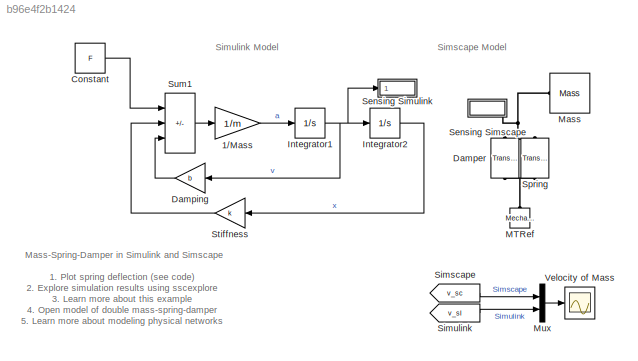
MODEL slx_b96e4f2b1424
KIND model
CONFIG AbsTol = 1e-3
CONFIG EnableMultiTasking = on
CONFIG FixedStep = auto
CONFIG MaxStep = 0.025
CONFIG MinStep = auto
CONFIG PreLoadFcn = m = 3.600;     % kg\nk = 400;    % N/m\nb = 10;      % Ns/m\nx0=1; %m
CONFIG RelTol = 1e-3
CONFIG SampleTimeConstraint = Unconstrained
CONFIG SolverName = VariableStepAuto
CONFIG StartTime = 0.0
CONFIG StopTime = 5
BLOCK [Gain] 1//Mass 
  Gain = 1/m
  OutDataTypeStr = Inherit: Same as input
  ParamDataTypeStr = Inherit: Same as input
  SaturateOnIntegerOverflow = on
BLOCK [Constant] Constant
  Value = F
BLOCK [Reference] Damper  REF=fl_lib/Mechanical/Translational
Elements/Translational Damper
  Commented = on
  NameLocation = left
  Ports = [0, 0, 0, 0, 0, 1, 1]
  SourceBlock = fl_lib/Mechanical/Translational\nElements/Translational Damper
  SourceProductBaseCode = SS
  SourceType = Translational Damper
BLOCK [Gain] Damping
  Gain = b
  OutDataTypeStr = Inherit: Same as input
  ParamDataTypeStr = Inherit: Same as input
  SaturateOnIntegerOverflow = on
BLOCK [Integrator] Integrator1
  Ports = [1, 1]
BLOCK [Integrator] Integrator2
  AttributesFormatString = x0 = %<InitialCondition> m
  InitialCondition = 1
  Ports = [1, 1]
BLOCK [Reference] MTRef  REF=fl_lib/Mechanical/Translational
Elements/Mechanical
Translational
Reference
  Commented = on
  NameLocation = right
  Ports = [0, 0, 0, 0, 0, 1]
  SourceBlock = fl_lib/Mechanical/Translational\nElements/Mechanical\nTranslational\nReference
  SourceProductBaseCode = SS
  SourceType = Mechanical\nTranslational\nReference
BLOCK [Reference] Mass  REF=fl_lib/Mechanical/Translational
Elements/Mass
  Commented = on
  Ports = [0, 0, 0, 0, 0, 1]
  SourceBlock = fl_lib/Mechanical/Translational\nElements/Mass
  SourceProductBaseCode = SS
  SourceType = Mass
BLOCK [Mux] Mux
  DisplayOption = bar
  Inputs = 2
  Ports = [2, 1]
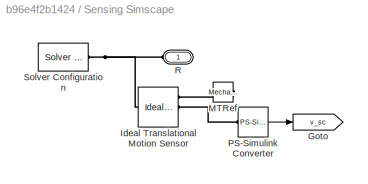
BLOCK [SubSystem] Sensing Simscape
  Commented = on
  Ports = [0, 0, 0, 0, 0, 1]
  RequestExecContextInheritance = off
BLOCK [Goto] Sensing Simscape/Goto
  GotoTag = v_sc
  TagVisibility = global
BLOCK [Reference] Sensing Simscape/Ideal Translational Motion Sensor  REF=fl_lib/Mechanical/Mechanical Sensors/Ideal Translational
Motion Sensor
  Ports = [0, 0, 0, 0, 0, 1, 3]
  SourceBlock = fl_lib/Mechanical/Mechanical Sensors/Ideal Translational\nMotion Sensor
  SourceProductBaseCode = SS
  SourceType = Ideal Translational\nMotion Sensor
BLOCK [Reference] Sensing Simscape/MTRef  REF=fl_lib/Mechanical/Translational
Elements/Mechanical
Translational
Reference
  NameLocation = top
  Ports = [0, 0, 0, 0, 0, 1]
  SourceBlock = fl_lib/Mechanical/Translational\nElements/Mechanical\nTranslational\nReference
  SourceProductBaseCode = SS
  SourceType = Mechanical\nTranslational\nReference
BLOCK [Reference] Sensing Simscape/PS-Simulink Converter  REF=nesl_utility/PS-Simulink
Converter
  Ports = [0, 1, 0, 0, 0, 1]
  SourceBlock = nesl_utility/PS-Simulink\nConverter
  SourceProductBaseCode = PW,SS
  SourceType = PS-Simulink\nConverter
BLOCK [PMIOPort] Sensing Simscape/R
  Side = Left
BLOCK [Reference] Sensing Simscape/Solver Configuration  REF=nesl_utility/Solver
Configuration
  Ports = [0, 0, 0, 0, 0, 0, 1]
  SourceBlock = nesl_utility/Solver\nConfiguration
  SourceProductBaseCode = PW,SS
  SourceType = Solver\nConfiguration
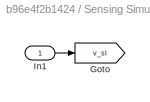
BLOCK [SubSystem] Sensing Simulink
  NameLocation = top
  Ports = [1]
  RequestExecContextInheritance = off
BLOCK [Goto] Sensing Simulink/Goto
  GotoTag = v_sl
  TagVisibility = global
BLOCK [Inport] Sensing Simulink/In1
BLOCK [From] Simscape
  GotoTag = v_sc
  TagVisibility = global
BLOCK [From] Simulink
  GotoTag = v_sl
  NameLocation = top
  TagVisibility = global
BLOCK [Reference] Spring  REF=fl_lib/Mechanical/Translational
Elements/Translational Spring
  AttributesFormatString = x0 = %<x> %<x_unit>
  Commented = on
  NameLocation = right
  Ports = [0, 0, 0, 0, 0, 1, 1]
  SourceBlock = fl_lib/Mechanical/Translational\nElements/Translational Spring
  SourceProductBaseCode = SS
  SourceType = Translational Spring
BLOCK [Gain] Stiffness
  Gain = k
  OutDataTypeStr = Inherit: Same as input
  ParamDataTypeStr = Inherit: Same as input
  SaturateOnIntegerOverflow = on
BLOCK [Sum] Sum1
  IconShape = rectangular
  InputSameDT = on
  Inputs = +--
  OutDataTypeStr = Inherit: Same as first input
  Ports = [3, 1]
  SaturateOnIntegerOverflow = on
BLOCK [Scope] Velocity of Mass
  Floating = off
  NumInputPorts = 1
  Ports = [1]
  ScopeSpecificationString = Simulink.scopes.TimeScopeBlockCfg('CurrentConfiguration', extmgr.ConfigurationSet(extmgr.Configuration('Core','General UI',true,'FigureColor',[0.501960784313725 0.501960784313725 0.501960784313725]),extmgr.Configuration('Core','Source UI',true),extmgr.Configuration('Sources','WiredSimulink',true,'DataLoggingSaveFormat','Array','DataLoggingLimitDataPoints',true,'DataLoggingDecimation','1'),extmgr.C...<+2596ch>
ANNOTATION (root): Simscape Model
ANNOTATION (root): Simulink Model
ANNOTATION (root): 1. Plot spring deflection ( see code ) 2. Explore simulation results using sscexplore 3. Learn more about this example 4. Open model of double mass-spring-damper 5. Learn more about modeling physical networks
ANNOTATION (root): Mass-Spring-Damper in Simulink and Simscape
LINE 1//Mass :1 -> Integrator1:1
LINE Constant:1 -> Sum1:1
LINE Damping:1 -> Sum1:3
NET Integrator1:1 -> Damping:1, Integrator2:1, Sensing Simulink:1
LINE Integrator2:1 -> Stiffness:1
LINE Mux:1 -> Velocity of Mass:1
LINE Sensing Simscape/PS-Simulink Converter:1 -> Sensing Simscape/Goto:1
LINE Sensing Simulink/In1:1 -> Sensing Simulink/Goto:1
LINE Simscape:1 -> Mux:1
LINE Simulink:1 -> Mux:2
LINE Stiffness:1 -> Sum1:2
LINE Sum1:1 -> 1//Mass :1
PNET net1: Damper:LConn1 -- Mass:LConn1 -- Sensing Simscape:LConn1 -- Spring:LConn1
PNET net2: Damper:RConn1 -- MTRef:LConn1 -- Spring:RConn1
PNET net3: Sensing Simscape/Ideal Translational Motion Sensor:LConn1 -- Sensing Simscape/R:RConn1 -- Sensing Simscape/Solver Configuration:RConn1
PLINE Sensing Simscape/Ideal Translational Motion Sensor:RConn1 -- Sensing Simscape/MTRef:LConn1
PLINE Sensing Simscape/Ideal Translational Motion Sensor:RConn2 -- Sensing Simscape/PS-Simulink Converter:LConn1
note: NET lines group one-source signal fan-out (src -> all destinations, sorted); 1:1 wires keep LINE; PNET lines group multi-terminal physical nets as a canonical sorted terminal list (undirected conserving connections); 2-terminal nets keep the pairwise PLINE form
